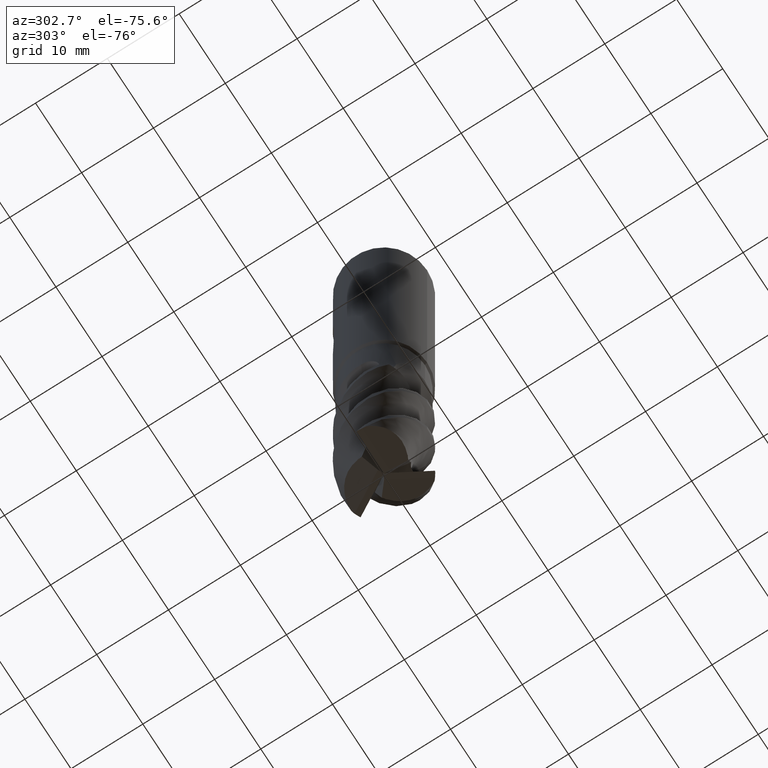
[diagram: clean part render]
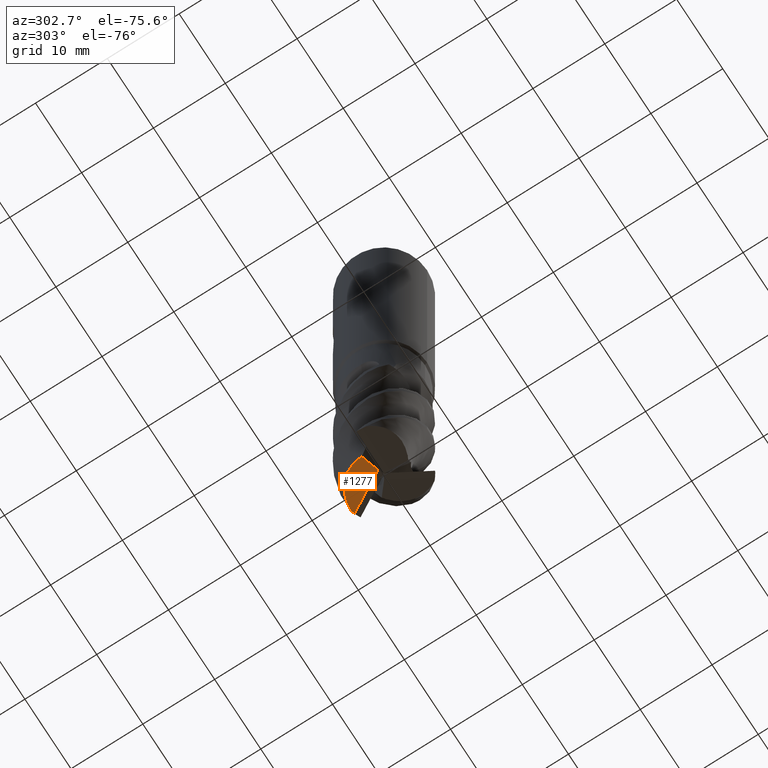
[diagram: same view with one face highlighted and labeled with its STEP entity id]
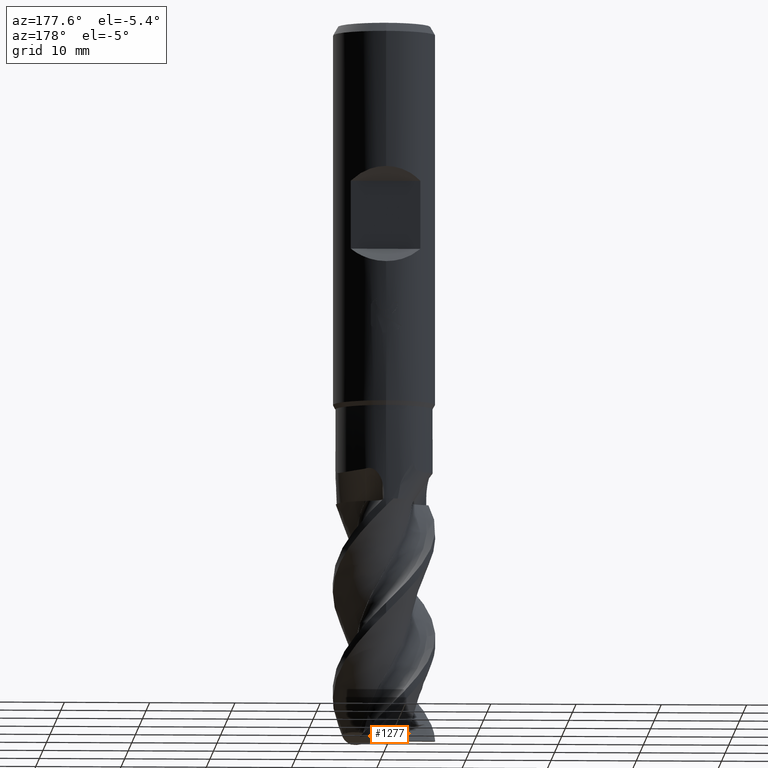
[diagram: same view with one face highlighted and labeled with its STEP entity id]
A machine part, auxiliary view. The second image highlights one B-rep face of the part: STEP entity #1277.
A second angle (auxiliary view) of the same face is appended — the face is thin or edge-on in the first view.
In plain terms, the highlighted planar face has unit normal (-0.2676, 0.1545, -0.9511).
Its self-contained STEP definition (entity closure, byte-faithful):
#487=VERTEX_POINT('',#1357);
#537=VERTEX_POINT('',#1411);
#633=EDGE_CURVE('',#1211,#537,#1516,.T.);
#635=VERTEX_POINT('',#1518);
#677=VERTEX_POINT('',#1562);
#699=EDGE_CURVE('',#677,#635,#1584,.T.);
#909=EDGE_CURVE('',#487,#1211,#1815,.T.);
#1047=EDGE_CURVE('',#677,#487,#1963,.T.);
#1077=EDGE_CURVE('',#1179,#537,#1997,.T.);
#1173=EDGE_CURVE('',#635,#1179,#2102,.T.);
#1179=VERTEX_POINT('',#2108);
#1211=VERTEX_POINT('',#2144);
#1277=ADVANCED_FACE('',(#2218),#2219,.T.);
#1357=CARTESIAN_POINT('',(-2.88288364824548,1.7843913697591,-83.1642961209775));
#1411=CARTESIAN_POINT('',(1.83097826267293,5.7138001604772,-83.8523524931989));
#1516=B_SPLINE_CURVE_WITH_KNOTS('',3,(#4069,#4070,#4071,#4072,#4073,#4074,#4075,#4076,#4077,#4078,#4079,#4080),.UNSPECIFIED.,.F.,.F.,(4,2,2,2,2,4),(0.0,1.77820399965647,3.43250558759218,5.18399062002579,6.45931056760436,7.85086887283672),.UNSPECIFIED.);
#1518=CARTESIAN_POINT('',(-0.722445809095434,0.382315332931497,-84.0));
#1562=CARTESIAN_POINT('',(-2.93235628359991,1.20974563051443,-83.2437319393995));
#1584=LINE('',#4262,#4263);
#1815=B_SPLINE_CURVE_WITH_KNOTS('',3,(#5502,#5503,#5504,#5505,#5506,#5507),.UNSPECIFIED.,.F.,.F.,(4,2,4),(0.0,0.0564974971495527,0.113178365868478),.UNSPECIFIED.);
#1963=B_SPLINE_CURVE_WITH_KNOTS('',3,(#5936,#5937,#5938,#5939,#5940,#5941,#5942,#5943),.UNSPECIFIED.,.F.,.F.,(4,2,2,4),(0.0,1.21100698748447,1.94319901433429,2.65133980001088),.UNSPECIFIED.);
#1997=ELLIPSE('',#6313,6.30877434207026,6.00000094785757);
#2102=LINE('',#6836,#6837);
#2108=CARTESIAN_POINT('',(2.26468885364618,5.5561843378501,-84.0));
#2144=CARTESIAN_POINT('',(-2.84297563844977,1.84835264736774,-83.1651346450142));
#2218=FACE_OUTER_BOUND('',#8464,.T.);
#2219=PLANE('',#8465);
#4069=CARTESIAN_POINT('',(-2.85007974304408,1.79719728633892,-83.1714463223215));
#4070=CARTESIAN_POINT('',(-2.77215654536204,2.38026062674011,-83.0986486487604));
#4071=CARTESIAN_POINT('',(-2.59266738660805,2.9455240218188,-83.0573222664933));
#4072=CARTESIAN_POINT('',(-2.03732424262811,3.94380665698287,-83.0514087127253));
#4073=CARTESIAN_POINT('',(-1.68518641565677,4.36640061441206,-83.0818417717278));
#4074=CARTESIAN_POINT('',(-0.814071745697617,5.07925472567785,-83.2111534353065));
#4075=CARTESIAN_POINT('',(-0.302793130240799,5.34707440719522,-83.3115115213441));
#4076=CARTESIAN_POINT('',(0.638296457976844,5.63481055516671,-83.5295779367312));
#4077=CARTESIAN_POINT('',(1.04687252984257,5.70066666326123,-83.6338476576129));
#4078=CARTESIAN_POINT('',(1.90308920435222,5.73059462093882,-83.8699152726404));
#4079=CARTESIAN_POINT('',(2.34806702970113,5.68480346042682,-84.0025662343776));
#4080=CARTESIAN_POINT('',(2.77973075967019,5.58462589203234,-84.1403063675402));
#4262=CARTESIAN_POINT('',(-1.58018271002213,0.70346748247311,-83.7064681895248));
#4263=VECTOR('',#9503,1.0);
#5502=CARTESIAN_POINT('',(-2.88288364824371,1.78439136976081,-83.1642961209797));
#5503=CARTESIAN_POINT('',(-2.87309452093463,1.80047913357454,-83.1644370552306));
#5504=CARTESIAN_POINT('',(-2.86317077127391,1.81648397941116,-83.1646293415334));
#5505=CARTESIAN_POINT('',(-2.84302354936497,1.84837616651739,-83.1651173424658));
#5506=CARTESIAN_POINT('',(-2.8327997167084,1.86426215390754,-83.1654133784612));
#5507=CARTESIAN_POINT('',(-2.82244311651645,1.88006053940127,-83.1657610055331));
#5936=CARTESIAN_POINT('',(-3.98348285214003,-0.287447611511654,-83.1911905757465));
#5937=CARTESIAN_POINT('',(-3.66498396919814,-0.0445675597063946,-83.2413543095863));
#5938=CARTESIAN_POINT('',(-3.40076522360409,0.242423977673106,-83.2690778808557));
#5939=CARTESIAN_POINT('',(-3.09466464508183,0.743416398096018,-83.2738199755921));
#5940=CARTESIAN_POINT('',(-3.00315609318714,0.946472943064507,-83.2665809130476));
#5941=CARTESIAN_POINT('',(-2.88968002633847,1.36433057853952,-83.2306267092484));
#5942=CARTESIAN_POINT('',(-2.86648555798918,1.57525759460676,-83.2028861998089));
#5943=CARTESIAN_POINT('',(-2.88288364835214,1.78439136974501,-83.1642961209518));
#6313=AXIS2_PLACEMENT_3D('',#9960,#9961,#9962);
#6836=CARTESIAN_POINT('',(0.662703333879061,2.78146402462377,-84.0));
#6837=VECTOR('',#10082,1.0);
#8464=EDGE_LOOP('',(#10222,#10223,#10224,#10225,#10226,#10227));
#8465=AXIS2_PLACEMENT_3D('',#10228,#10229,#10230);
#9503=DIRECTION('',(0.891826472922069,-0.333915899488061,-0.305197828079527));
#9960=CARTESIAN_POINT('',(6.02975904762104E-006,-3.48128301119743E-006,-84.2654012482764));
#9961=DIRECTION('',(0.267616567329814,-0.154508497187472,0.951056516295155));
#9962=DIRECTION('',(-0.823639103546332,0.47552825814758,0.309016994374943));
#10082=DIRECTION('',(0.5,0.866025403784439,0.0));
#10222=ORIENTED_EDGE('',*,*,#633,.T.);
#10223=ORIENTED_EDGE('',*,*,#1077,.F.);
#10224=ORIENTED_EDGE('',*,*,#1173,.F.);
#10225=ORIENTED_EDGE('',*,*,#699,.F.);
#10226=ORIENTED_EDGE('',*,*,#1047,.T.);
#10227=ORIENTED_EDGE('',*,*,#909,.T.);
#10228=CARTESIAN_POINT('',(-1.89402951382776,4.42417039532497,-83.0136904118021));
#10229=DIRECTION('',(-0.267616567329814,0.154508497187472,-0.951056516295155));
#10230=DIRECTION('',(-0.823639103546333,0.475528258147577,0.309016994374943));